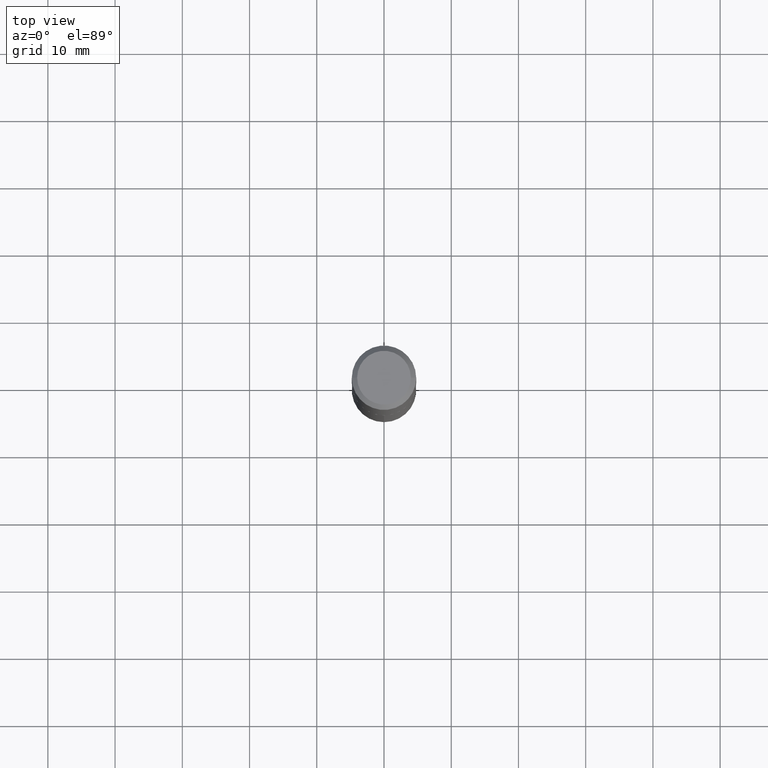
[diagram: clean part render]
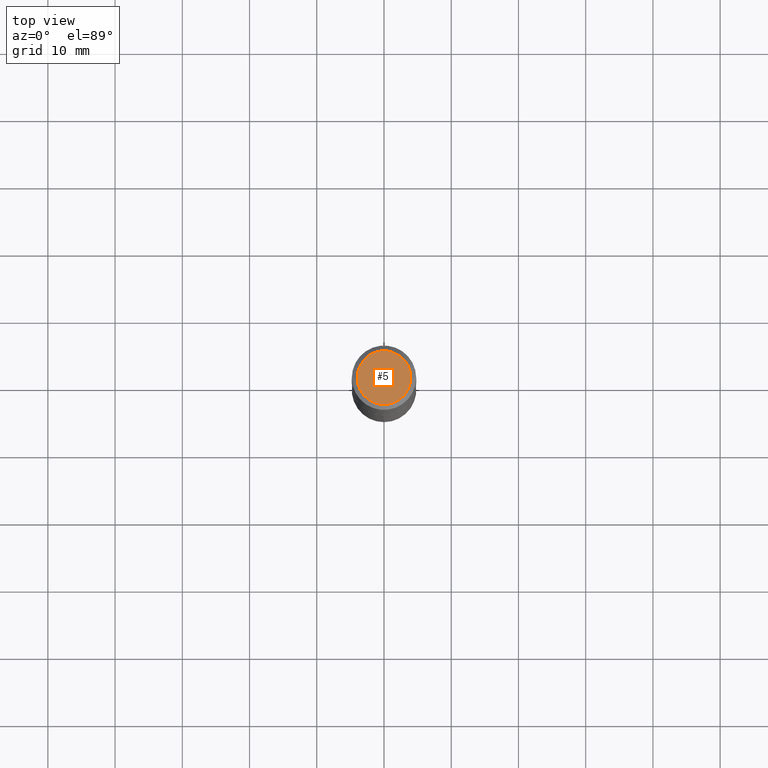
[diagram: same view with one face highlighted and labeled with its STEP entity id]
A machine part, top view. The second image highlights one B-rep face of the part: STEP entity #5.
In plain terms, the highlighted planar face has unit normal (0, -0, -1).
Its self-contained STEP definition (entity closure, byte-faithful):
#5 = ADVANCED_FACE ( 'NONE', ( #364 ), #340, .F. ) ;
#23 = DIRECTION ( 'NONE',  ( 1.000000000000000000, -6.982962677686266711E-15, 4.876179476867739168E-29 ) ) ;
#34 = DIRECTION ( 'NONE',  ( 2.438088387897960049E-29, -3.491481338843145188E-15, -1.000000000000000000 ) ) ;
#38 = VERTEX_POINT ( 'NONE', #268 ) ;
#63 = AXIS2_PLACEMENT_3D ( 'NONE', #312, #285, #139 ) ;
#66 = CARTESIAN_POINT ( 'NONE',  ( -1.497417772954680954E-48, 2.137915722948511961E-34, 6.123233995736837940E-20 ) ) ;
#108 = EDGE_LOOP ( 'NONE', ( #233, #206 ) ) ;
#128 = DIRECTION ( 'NONE',  ( -1.000000000000000000, 6.982962677686265922E-15, -4.876176775795935793E-29 ) ) ;
#135 = CARTESIAN_POINT ( 'NONE',  ( -2.994835545909361907E-48, 4.275831445897023923E-34, 1.224646799147367588E-19 ) ) ;
#138 = CARTESIAN_POINT ( 'NONE',  ( 0.1572500000000000009, -1.240562987284178150E-15, 1.224646799229136555E-19 ) ) ;
#139 = DIRECTION ( 'NONE',  ( 1.000000000000000000, -6.982962677686266711E-15, 4.876179476867739168E-29 ) ) ;
#206 = ORIENTED_EDGE ( 'NONE', *, *, #302, .T. ) ;
#225 = DIRECTION ( 'NONE',  ( -2.445468806185136597E-29, 3.491481338843145583E-15, 1.000000000000000000 ) ) ;
#233 = ORIENTED_EDGE ( 'NONE', *, *, #249, .T. ) ;
#249 = EDGE_CURVE ( 'NONE', #38, #322, #380, .T. ) ;
#258 = CIRCLE ( 'NONE', #295, 0.1572500000000000009 ) ;
#268 = CARTESIAN_POINT ( 'NONE',  ( -0.1572500000000000009, 1.152625276985588752E-15, 1.224646799068669035E-19 ) ) ;
#285 = DIRECTION ( 'NONE',  ( -2.445468806185136597E-29, 3.491481338843145583E-15, 1.000000000000000000 ) ) ;
#295 = AXIS2_PLACEMENT_3D ( 'NONE', #135, #225, #23 ) ;
#301 = AXIS2_PLACEMENT_3D ( 'NONE', #66, #34, #128 ) ;
#302 = EDGE_CURVE ( 'NONE', #322, #38, #258, .T. ) ;
#312 = CARTESIAN_POINT ( 'NONE',  ( -2.994835545909361907E-48, 4.275831445897023923E-34, 1.224646799147367588E-19 ) ) ;
#322 = VERTEX_POINT ( 'NONE', #138 ) ;
#340 = PLANE ( 'NONE',  #301 ) ;
#364 = FACE_OUTER_BOUND ( 'NONE', #108, .T. ) ;
#380 = CIRCLE ( 'NONE', #63, 0.1572500000000000009 ) ;